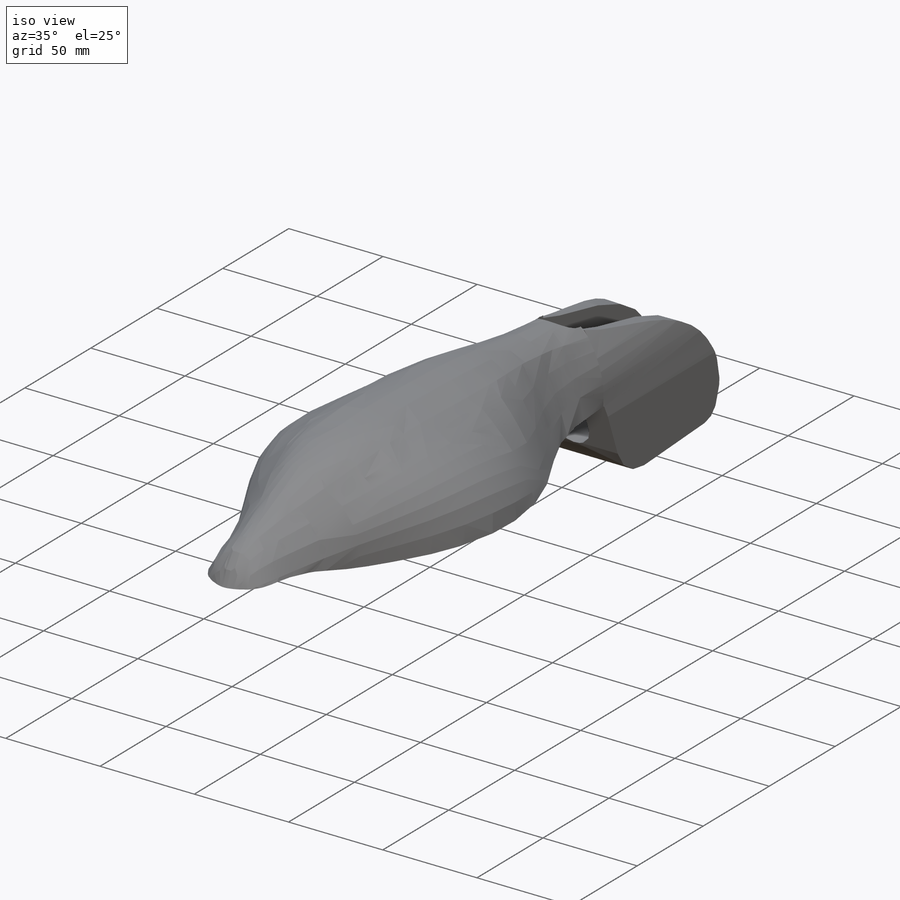
[diagram: iso view]
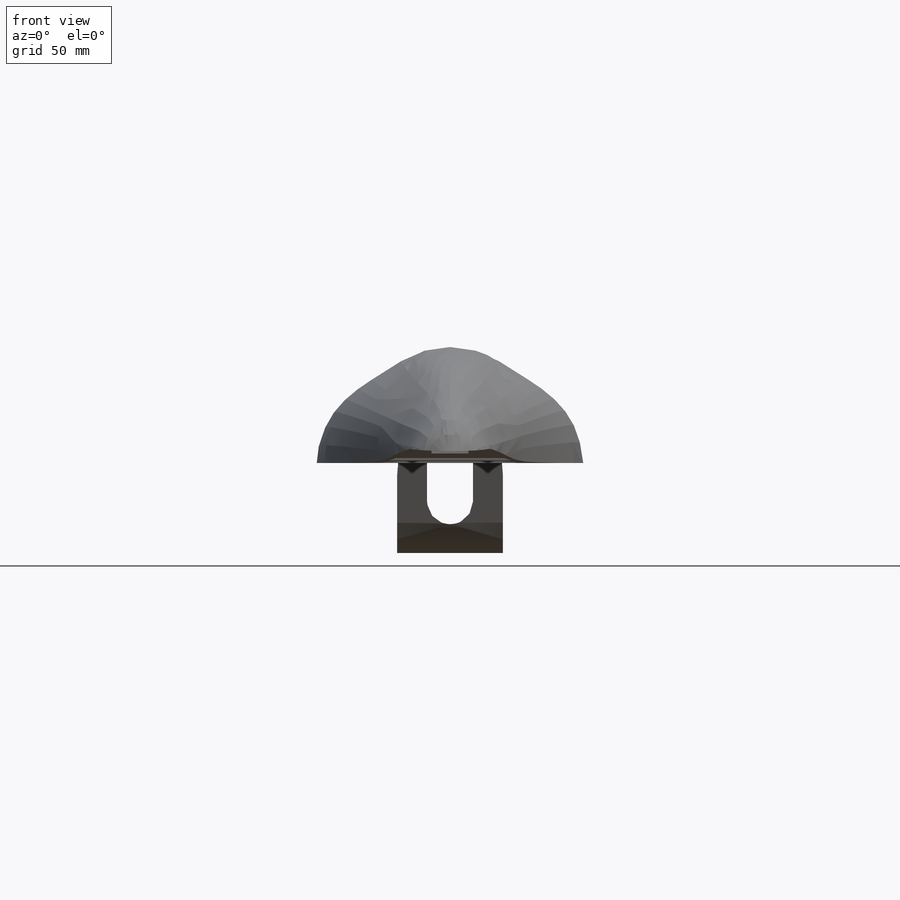
[diagram: front view]
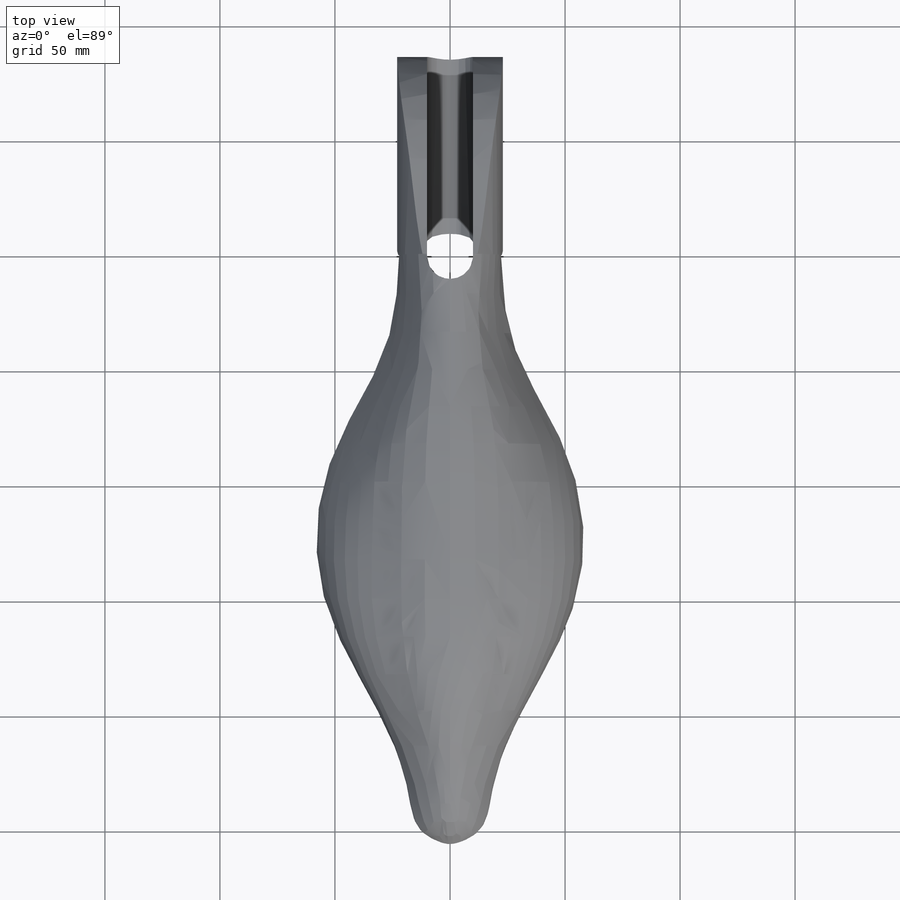
[diagram: top view]
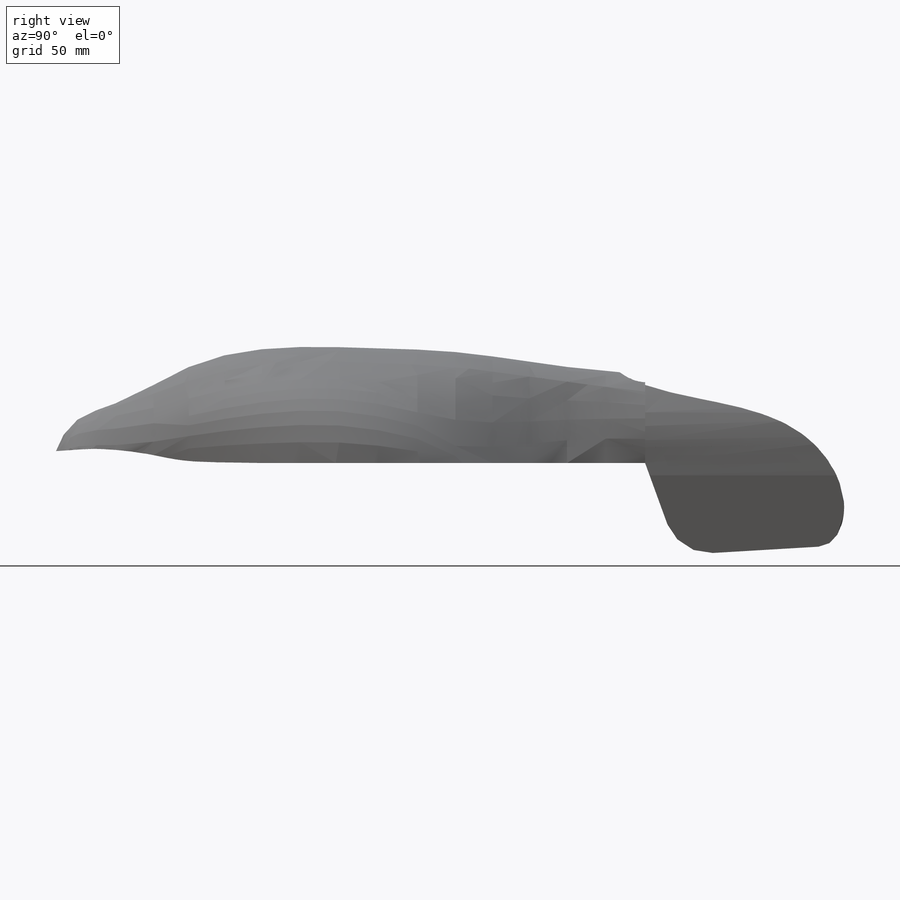
[diagram: right view]
SOLIDWORKS PART (.sldprt)
format: sldprt  version: not decoded by parser v0  size: 703,488 bytes
history: native  units: mm
features: sketch x28, plane x18, cut_extrude x6, fillet x2, material x1, extrude x1 (+11 scaffold rows collapsed)
feature tree (67):
  scaffold x11  (default folders/planes/origin — collapsed)
  material  "Matériau <non spécifié>"
  plane  "Face"
  plane  "Dessus"
  plane  "Droite"
  plane  "Plan1"  Offset=40mm
  plane  "Plan2"  Offset=40mm
  plane  "Plan3"  Offset=40mm
  plane  "Plan4"  Offset=40mm
  plane  "Plan5"  Offset=40mm
  plane  "Plan6"  Offset=30mm
  plane  "Plan7"  Offset=20mm
  plane  "Plan8"  Offset=8mm
  sketch  "Esquisse1"  dims[c1.D3=16.5mm c1.D1=44.0mm c1.D2=38.0mm c2.D1=22.0mm c2.D2=22.0mm]
  sketch  "Esquisse3"  dims[D2=16.0mm D1=28.0mm D3=26.5mm]
  sketch  "Esquisse4"  dims[D2=32.0mm D1=48.0mm D3=16.0mm]
  sketch  "Esquisse5"  dims[D2=38.0mm D1=58.0mm D3=12.0mm]
  sketch  "Esquisse6"  dims[c1.D2=38.0mm c1.D3=~25.336188mm c1.D1=51.0mm c2.D3=12.0mm]
  sketch  "Esquisse7"  dims[D2=20.0mm D1=30.0mm D3=21.0mm]
  sketch  "Esquisse8"  dims[D2=10.0mm D1=19.6mm D3=16.0mm]
  sketch  "Esquisse13"  dims[D2=8.0mm D1=8.0mm D3=13.8mm]
  sketch  "Esquisse16"  dims[D1=~0.256176mm D2=~0.512351mm]
  sketch  "Esquisse17"  dims[D1=2.5mm]
  sketch  "Esquisse20"  dims[c1.D1=~50.984839mm c2.D1=110.0deg c2.D2=40.0mm c2.D3=80.0mm]
  extrude  "Extrusion1"  Depth=46mm
  sketch  "Esquisse21"
  cut_extrude  "Extrusion2"  [1 undecoded]
  fillet  "Congé1"  Radius=20mm
  fillet  "Congé2"  Radius=10mm
  sketch  "Esquisse22"  dims[D1=10.0mm D2=1.0mm]
  cut_extrude  "Extrusion3"  Depth=46mm
  sketch  "Esquisse23"  dims[D1=10.0mm]
  cut_extrude  "Extrusion4"  [1 undecoded]
  sketch  "Esquisse27"
  cut_extrude  "Extrusion8"  Depth=110mm
  plane  "Plan9"  Offset=16mm
  sketch  "Esquisse28"  dims[D1=0.1mm]
  sketch  "Esquisse29"  dims[D1=10.0mm D2=~10.061442mm]
  sketch  "Esquisse30"
  sketch  "Esquisse33"
  plane  "Plan10"  Offset=3mm
  sketch  "Esquisse32"  dims[D1=10.0mm D2=10.0mm]
  sketch  "Esquisse34"  dims[D1=16.5mm D2=40.0mm]
  cut_extrude  "Extrusion9"  Depth=2.5mm
  plane  "Plan12"  Offset=4mm
  sketch  "Esquisse37"  dims[D1=1.5mm D2=53.0mm D3=26.5mm D4=1.5mm]
  plane  "Plan13"  Offset=25mm
  sketch  "Esquisse38"  dims[D1=34.0mm D2=17.0mm D3=1.5mm D4=35.0mm]
  plane  "Plan14"  Offset=20mm
  sketch  "Esquisse39"  dims[D1=26.0mm D2=13.0mm D3=1.2mm D4=28.0mm]
  plane  "Plan15"  Offset=7mm
  sketch  "Esquisse40"  dims[D1=0.2mm D2=0.3mm D3=0.1mm]
  sketch  "Esquisse41"  dims[D1=12.0mm]
  plane  "Plan17"
  sketch  "Esquisse42"  dims[D1=7.0mm D2=16.0mm D3=8.0mm D4=9.0mm]
  cut_extrude  "Extrusion11"  Depth=6mm
  sketch  "Esquisse43"
decode coverage: 30 of 37 modeling features carry decoded parameters
note: ~ marks probable driven/reference dimensions
note: 2 parameter values undecoded
note: suppression state not decoded; provenance and decode notes live in map.json
